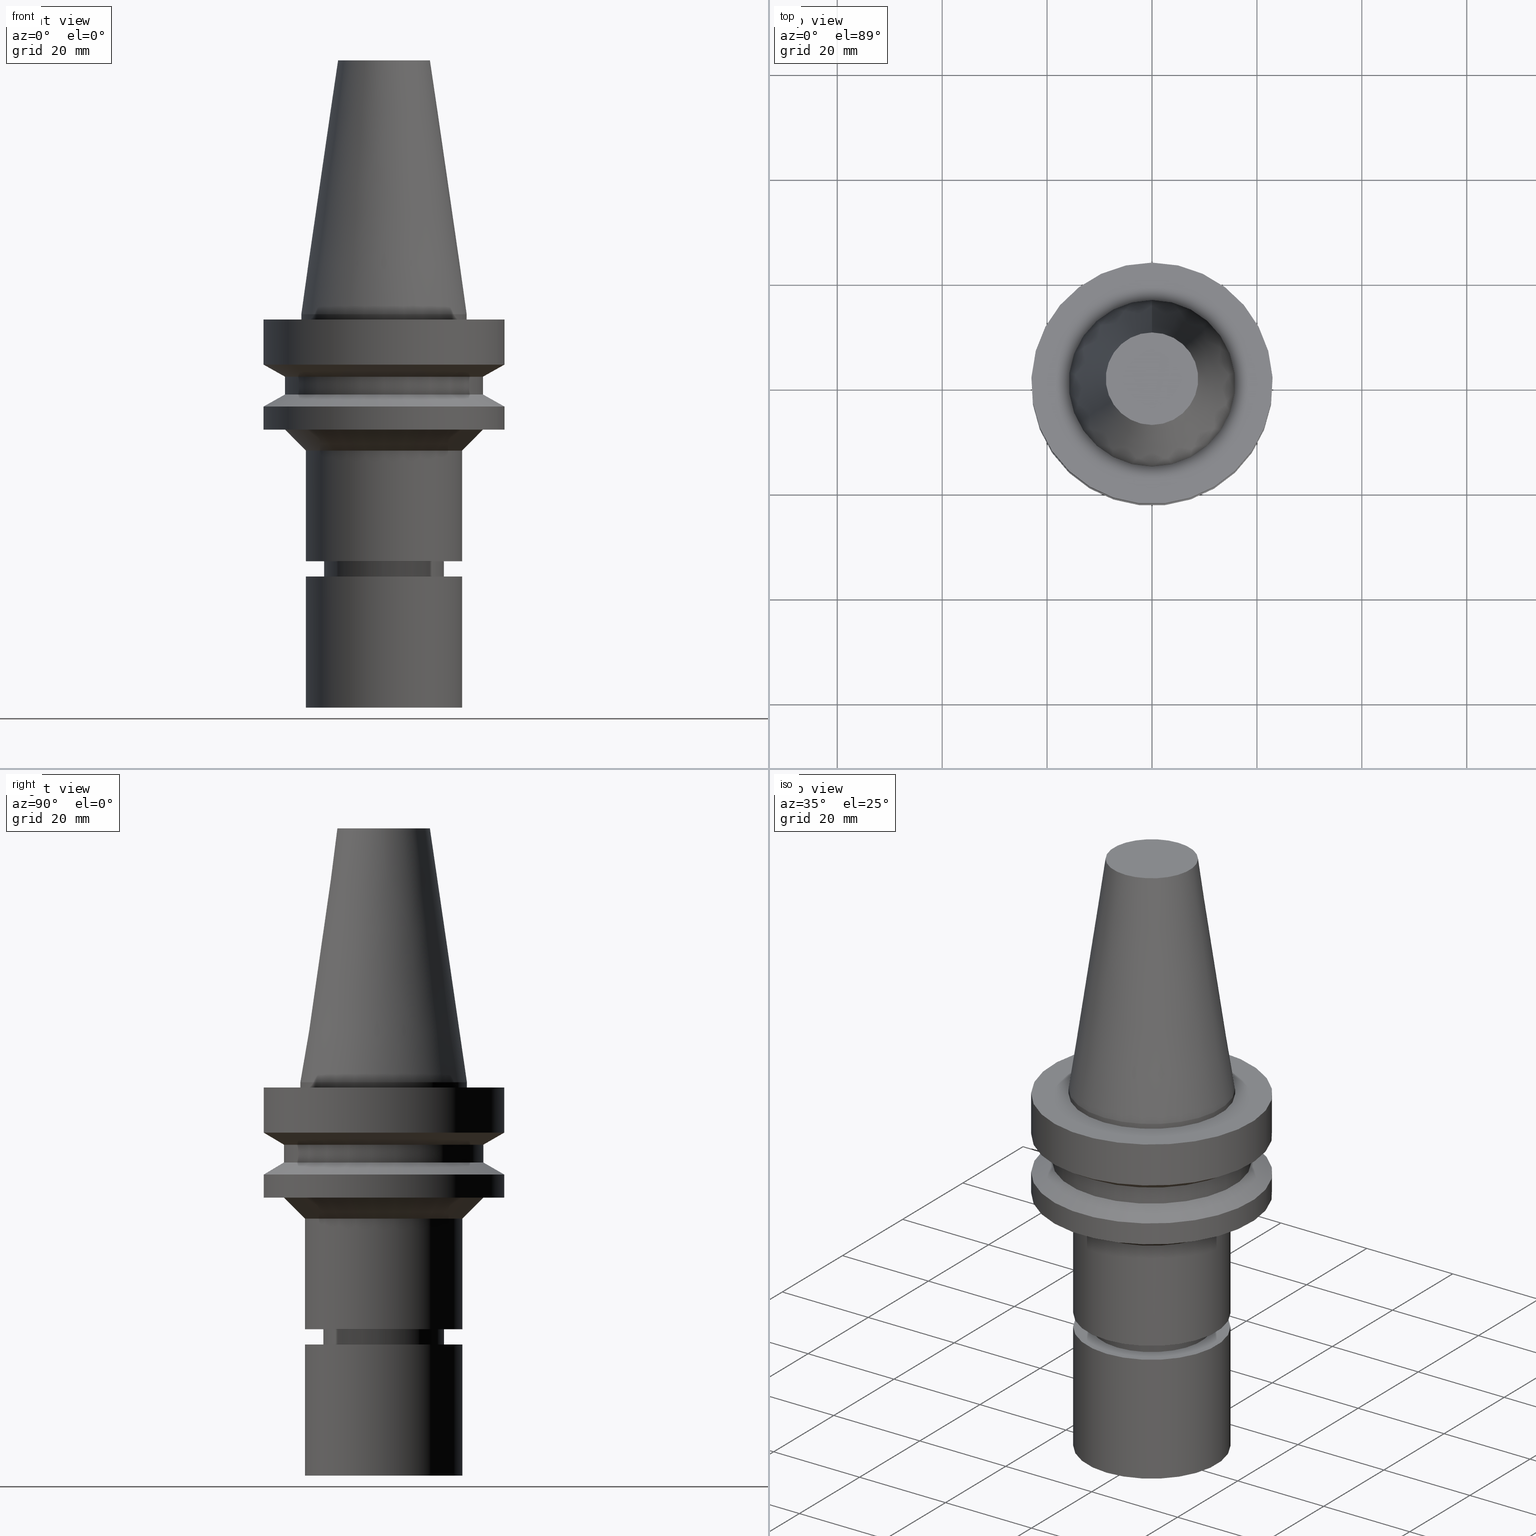
[diagram: canonical four-view strip — front | top / right | iso, engineering-drawing reading convention]
A machine part, canonical four-view strip (front | top / right | iso — engineering-drawing reading convention). The complete STEP part file that produces these views, byte-faithful:
ISO-10303-21;
HEADER;
FILE_DESCRIPTION((''),'1');
FILE_NAME('V:/90_\X2\53D65F9730C730FC30BF\X0\/00_\X2\6DE18DEF30C730FC30BF\X0\/ALL/BBT-BKUS\X2\FF76FF80FF9BFF78FF9E752852A05DE556F3\X0\201801/BBT30-MEGAER/BBT30-MEGAER16-75NL.stp','2018-02-02T07:08:50',(''),(''),'Spatial Interop R21 SP3','Kubotek KeyCreator 2011 V10.0.2 (22737)',' ');
FILE_SCHEMA(('automotive_design'));
ENDSEC;
DATA;
#1=MECHANICAL_DESIGN_GEOMETRIC_PRESENTATION_REPRESENTATION(' ',(#14,#15,#16,#17,#18,#19,#20,#21,#22,#23,#24,#25,#26,#27,#28,#29,#30,#31,#32,#33,#34,#35,#36,#37,#38,#39,#40,#41,#42,#43,#44,#45,#46,#47,#48,#49,#50,#51,#52,#53,#54,#55),#10);
#2=PRODUCT_DEFINITION_CONTEXT('',#56,'design');
#3=APPLICATION_PROTOCOL_DEFINITION('INTERNATIONAL STANDARD','automotive_design',1994,#56);
#4=PRODUCT_CATEGORY_RELATIONSHIP('NONE','NONE',#57,#58);
#5=SHAPE_DEFINITION_REPRESENTATION(#59,#60);
#6=PRODUCT_DEFINITION_CONTEXT('',#61,'design');
#7=APPLICATION_PROTOCOL_DEFINITION('INTERNATIONAL STANDARD','automotive_design',1994,#61);
#8=PRODUCT_CATEGORY_RELATIONSHIP('NONE','NONE',#62,#63);
#9=SHAPE_DEFINITION_REPRESENTATION(#64,#65);
#10= (GEOMETRIC_REPRESENTATION_CONTEXT(3)GLOBAL_UNCERTAINTY_ASSIGNED_CONTEXT((#68))GLOBAL_UNIT_ASSIGNED_CONTEXT((#70,#71,#72))REPRESENTATION_CONTEXT('NONE','WORKSPACE'));
#14=STYLED_ITEM('',(#74),#75);
#15=STYLED_ITEM('',(#76,#77),#78);
#16=STYLED_ITEM('',(#79),#80);
#17=STYLED_ITEM('',(#81),#82);
#18=STYLED_ITEM('',(#83,#84),#85);
#19=STYLED_ITEM('',(#86),#87);
#20=STYLED_ITEM('',(#88),#89);
#21=STYLED_ITEM('',(#90,#91),#92);
#22=STYLED_ITEM('',(#93,#94),#95);
#23=STYLED_ITEM('',(#96,#97),#98);
#24=STYLED_ITEM('',(#99),#100);
#25=STYLED_ITEM('',(#101),#102);
#26=STYLED_ITEM('',(#103,#104),#105);
#27=STYLED_ITEM('',(#106,#107),#108);
#28=STYLED_ITEM('',(#109),#110);
#29=STYLED_ITEM('',(#111,#112),#113);
#30=STYLED_ITEM('',(#114),#115);
#31=STYLED_ITEM('',(#116,#117),#118);
#32=STYLED_ITEM('',(#119,#120),#121);
#33=STYLED_ITEM('',(#122,#123),#124);
#34=STYLED_ITEM('',(#125,#126),#127);
#35=STYLED_ITEM('',(#128,#129),#130);
#36=STYLED_ITEM('',(#131),#132);
#37=STYLED_ITEM('',(#133),#134);
#38=STYLED_ITEM('',(#135),#136);
#39=STYLED_ITEM('',(#137),#138);
#40=STYLED_ITEM('',(#139,#140),#141);
#41=STYLED_ITEM('',(#142,#143),#144);
#42=STYLED_ITEM('',(#145,#146),#147);
#43=STYLED_ITEM('',(#148,#149),#150);
#44=STYLED_ITEM('',(#151,#152),#153);
#45=STYLED_ITEM('',(#154,#155),#156);
#46=STYLED_ITEM('',(#157,#158),#159);
#47=STYLED_ITEM('',(#160,#161),#162);
#48=STYLED_ITEM('',(#163),#164);
#49=STYLED_ITEM('',(#165),#166);
#50=STYLED_ITEM('',(#167,#168),#169);
#51=STYLED_ITEM('',(#170),#171);
#52=STYLED_ITEM('',(#172,#173),#174);
#53=STYLED_ITEM('',(#175),#176);
#54=STYLED_ITEM('',(#177),#178);
#55=STYLED_ITEM('',(#179),#180);
#56=APPLICATION_CONTEXT(' ');
#57=PRODUCT_CATEGORY('part','NONE');
#58=PRODUCT_RELATED_PRODUCT_CATEGORY('detail',' ',(#181));
#59=PRODUCT_DEFINITION_SHAPE('NONE','NONE',#182);
#60=ADVANCED_BREP_SHAPE_REPRESENTATION('Unnamed[1]',(#156,#183),#10);
#61=APPLICATION_CONTEXT(' ');
#62=PRODUCT_CATEGORY('part','NONE');
#63=PRODUCT_RELATED_PRODUCT_CATEGORY('detail',' ',(#184));
#64=PRODUCT_DEFINITION_SHAPE('NONE','NONE',#185);
#65=ADVANCED_BREP_SHAPE_REPRESENTATION('Unnamed[1]',(#124,#186),#10);
#68=UNCERTAINTY_MEASURE_WITH_UNIT(LENGTH_MEASURE(1.0E-006),#70,'','');
#70= (CONVERSION_BASED_UNIT('MILLIMETRE',#189)LENGTH_UNIT()NAMED_UNIT(#192));
#71= (NAMED_UNIT(#194)PLANE_ANGLE_UNIT()SI_UNIT($,.RADIAN.));
#72= (NAMED_UNIT(#194)SOLID_ANGLE_UNIT()SI_UNIT($,.STERADIAN.));
#74=PRESENTATION_STYLE_ASSIGNMENT((#200));
#75=EDGE_CURVE('Unnamed[1]',#201,#201,#202,.T.);
#76=PRESENTATION_STYLE_ASSIGNMENT((#203));
#77=PRESENTATION_STYLE_ASSIGNMENT((#204));
#78=ADVANCED_FACE('Unnamed[1]',(#205,#206),#207,.T.);
#79=PRESENTATION_STYLE_ASSIGNMENT((#208));
#80=EDGE_CURVE('Unnamed[1]',#209,#209,#210,.T.);
#81=PRESENTATION_STYLE_ASSIGNMENT((#211));
#82=EDGE_CURVE('Unnamed[1]',#212,#212,#213,.T.);
#83=PRESENTATION_STYLE_ASSIGNMENT((#214));
#84=PRESENTATION_STYLE_ASSIGNMENT((#215));
#85=ADVANCED_FACE('Unnamed[1]',(#216,#217),#218,.T.);
#86=PRESENTATION_STYLE_ASSIGNMENT((#219));
#87=EDGE_CURVE('Unnamed[1]',#220,#220,#221,.T.);
#88=PRESENTATION_STYLE_ASSIGNMENT((#222));
#89=EDGE_CURVE('Unnamed[1]',#223,#223,#224,.T.);
#90=PRESENTATION_STYLE_ASSIGNMENT((#225));
#91=PRESENTATION_STYLE_ASSIGNMENT((#226));
#92=ADVANCED_FACE('Unnamed[1]',(#227,#228),#229,.T.);
#93=PRESENTATION_STYLE_ASSIGNMENT((#230));
#94=PRESENTATION_STYLE_ASSIGNMENT((#231));
#95=ADVANCED_FACE('Unnamed[1]',(#232,#233),#234,.T.);
#96=PRESENTATION_STYLE_ASSIGNMENT((#235));
#97=PRESENTATION_STYLE_ASSIGNMENT((#236));
#98=ADVANCED_FACE('Unnamed[1]',(#237,#238),#239,.T.);
#99=PRESENTATION_STYLE_ASSIGNMENT((#240));
#100=EDGE_CURVE('Unnamed[1]',#241,#241,#242,.T.);
#101=PRESENTATION_STYLE_ASSIGNMENT((#243));
#102=EDGE_CURVE('Unnamed[1]',#244,#244,#245,.T.);
#103=PRESENTATION_STYLE_ASSIGNMENT((#246));
#104=PRESENTATION_STYLE_ASSIGNMENT((#247));
#105=ADVANCED_FACE('Unnamed[1]',(#248),#249,.T.);
#106=PRESENTATION_STYLE_ASSIGNMENT((#250));
#107=PRESENTATION_STYLE_ASSIGNMENT((#251));
#108=ADVANCED_FACE('Unnamed[1]',(#252,#253),#254,.T.);
#109=PRESENTATION_STYLE_ASSIGNMENT((#255));
#110=EDGE_CURVE('Unnamed[1]',#256,#256,#257,.T.);
#111=PRESENTATION_STYLE_ASSIGNMENT((#258));
#112=PRESENTATION_STYLE_ASSIGNMENT((#259));
#113=ADVANCED_FACE('Unnamed[1]',(#260,#261),#262,.T.);
#114=PRESENTATION_STYLE_ASSIGNMENT((#263));
#115=EDGE_CURVE('Unnamed[1]',#264,#264,#265,.T.);
#116=PRESENTATION_STYLE_ASSIGNMENT((#266));
#117=PRESENTATION_STYLE_ASSIGNMENT((#267));
#118=ADVANCED_FACE('Unnamed[1]',(#268,#269),#270,.T.);
#119=PRESENTATION_STYLE_ASSIGNMENT((#271));
#120=PRESENTATION_STYLE_ASSIGNMENT((#272));
#121=ADVANCED_FACE('Unnamed[1]',(#273,#274),#275,.T.);
#122=PRESENTATION_STYLE_ASSIGNMENT((#276));
#123=PRESENTATION_STYLE_ASSIGNMENT((#277));
#124=MANIFOLD_SOLID_BREP('Unnamed[1]',#278);
#125=PRESENTATION_STYLE_ASSIGNMENT((#279));
#126=PRESENTATION_STYLE_ASSIGNMENT((#280));
#127=ADVANCED_FACE('Unnamed[1]',(#281,#282),#283,.T.);
#128=PRESENTATION_STYLE_ASSIGNMENT((#284));
#129=PRESENTATION_STYLE_ASSIGNMENT((#285));
#130=ADVANCED_FACE('Unnamed[1]',(#286,#287),#288,.T.);
#131=PRESENTATION_STYLE_ASSIGNMENT((#289));
#132=EDGE_CURVE('Unnamed[1]',#290,#290,#291,.T.);
#133=PRESENTATION_STYLE_ASSIGNMENT((#292));
#134=EDGE_CURVE('Unnamed[1]',#293,#293,#294,.T.);
#135=PRESENTATION_STYLE_ASSIGNMENT((#295));
#136=EDGE_CURVE('Unnamed[1]',#296,#296,#297,.T.);
#137=PRESENTATION_STYLE_ASSIGNMENT((#298));
#138=EDGE_CURVE('Unnamed[1]',#299,#299,#300,.T.);
#139=PRESENTATION_STYLE_ASSIGNMENT((#301));
#140=PRESENTATION_STYLE_ASSIGNMENT((#302));
#141=ADVANCED_FACE('Unnamed[1]',(#303,#304),#305,.T.);
#142=PRESENTATION_STYLE_ASSIGNMENT((#306));
#143=PRESENTATION_STYLE_ASSIGNMENT((#307));
#144=ADVANCED_FACE('Unnamed[1]',(#308,#309),#310,.T.);
#145=PRESENTATION_STYLE_ASSIGNMENT((#311));
#146=PRESENTATION_STYLE_ASSIGNMENT((#312));
#147=ADVANCED_FACE('Unnamed[1]',(#313),#314,.T.);
#148=PRESENTATION_STYLE_ASSIGNMENT((#315));
#149=PRESENTATION_STYLE_ASSIGNMENT((#316));
#150=ADVANCED_FACE('Unnamed[1]',(#317),#318,.T.);
#151=PRESENTATION_STYLE_ASSIGNMENT((#319));
#152=PRESENTATION_STYLE_ASSIGNMENT((#320));
#153=ADVANCED_FACE('Unnamed[1]',(#321,#322),#323,.T.);
#154=PRESENTATION_STYLE_ASSIGNMENT((#324));
#155=PRESENTATION_STYLE_ASSIGNMENT((#325));
#156=MANIFOLD_SOLID_BREP('Unnamed[1]',#326);
#157=PRESENTATION_STYLE_ASSIGNMENT((#327));
#158=PRESENTATION_STYLE_ASSIGNMENT((#328));
#159=ADVANCED_FACE('Unnamed[1]',(#329,#330),#331,.T.);
#160=PRESENTATION_STYLE_ASSIGNMENT((#332));
#161=PRESENTATION_STYLE_ASSIGNMENT((#333));
#162=ADVANCED_FACE('Unnamed[1]',(#334,#335),#336,.T.);
#163=PRESENTATION_STYLE_ASSIGNMENT((#337));
#164=EDGE_CURVE('Unnamed[1]',#338,#338,#339,.T.);
#165=PRESENTATION_STYLE_ASSIGNMENT((#340));
#166=EDGE_CURVE('Unnamed[1]',#341,#341,#342,.T.);
#167=PRESENTATION_STYLE_ASSIGNMENT((#343));
#168=PRESENTATION_STYLE_ASSIGNMENT((#344));
#169=ADVANCED_FACE('Unnamed[1]',(#345),#346,.T.);
#170=PRESENTATION_STYLE_ASSIGNMENT((#347));
#171=EDGE_CURVE('Unnamed[1]',#348,#348,#349,.T.);
#172=PRESENTATION_STYLE_ASSIGNMENT((#350));
#173=PRESENTATION_STYLE_ASSIGNMENT((#351));
#174=ADVANCED_FACE('Unnamed[1]',(#352,#353),#354,.T.);
#175=PRESENTATION_STYLE_ASSIGNMENT((#355));
#176=EDGE_CURVE('Unnamed[1]',#356,#356,#357,.T.);
#177=PRESENTATION_STYLE_ASSIGNMENT((#358));
#178=EDGE_CURVE('Unnamed[1]',#359,#359,#360,.T.);
#179=PRESENTATION_STYLE_ASSIGNMENT((#361));
#180=EDGE_CURVE('Unnamed[1]',#362,#362,#363,.T.);
#181=PRODUCT('Unnamed[1]','Unnamed[1]','PART-Unnamed[1]-DESC',(#364));
#182=PRODUCT_DEFINITION('NONE','NONE',#365,#2);
#183=AXIS2_PLACEMENT_3D('',#366,#367,#368);
#184=PRODUCT('Unnamed[1]','Unnamed[1]','PART-Unnamed[1]-DESC',(#369));
#185=PRODUCT_DEFINITION('NONE','NONE',#370,#6);
#186=AXIS2_PLACEMENT_3D('',#371,#372,#373);
#189=LENGTH_MEASURE_WITH_UNIT(LENGTH_MEASURE(1.0),#374);
#192=DIMENSIONAL_EXPONENTS(1.0,0.0,0.0,0.0,0.0,0.0,0.0);
#194=DIMENSIONAL_EXPONENTS(0.0,0.0,0.0,0.0,0.0,0.0,0.0);
#200=CURVE_STYLE('',#375,POSITIVE_LENGTH_MEASURE(1000.0),#376);
#201=VERTEX_POINT('',#377);
#202=CIRCLE('',#378,23.0);
#203=SURFACE_STYLE_USAGE(.BOTH.,#379);
#204=CURVE_STYLE('',#380,POSITIVE_LENGTH_MEASURE(1000.0),#381);
#205=FACE_BOUND('',#382,.T.);
#206=FACE_BOUND('',#383,.T.);
#207=CYLINDRICAL_SURFACE('',#384,11.4999999999964);
#208=CURVE_STYLE('',#385,POSITIVE_LENGTH_MEASURE(1000.0),#386);
#209=VERTEX_POINT('',#387);
#210=CIRCLE('',#388,19.0000000000004);
#211=CURVE_STYLE('',#389,POSITIVE_LENGTH_MEASURE(1000.0),#390);
#212=VERTEX_POINT('',#391);
#213=CIRCLE('',#392,11.4999999999907);
#214=SURFACE_STYLE_USAGE(.BOTH.,#393);
#215=CURVE_STYLE('',#394,POSITIVE_LENGTH_MEASURE(1000.0),#395);
#216=FACE_BOUND('',#396,.T.);
#217=FACE_BOUND('',#397,.T.);
#218=CONICAL_SURFACE('',#398,17.0000000000004,0.785398163397453);
#219=CURVE_STYLE('',#399,POSITIVE_LENGTH_MEASURE(1000.0),#400);
#220=VERTEX_POINT('',#401);
#221=CIRCLE('',#402,10.9999999999999);
#222=CURVE_STYLE('',#403,POSITIVE_LENGTH_MEASURE(1000.0),#404);
#223=VERTEX_POINT('',#405);
#224=CIRCLE('',#406,15.0000000000002);
#225=SURFACE_STYLE_USAGE(.BOTH.,#407);
#226=CURVE_STYLE('',#408,POSITIVE_LENGTH_MEASURE(1000.0),#409);
#227=FACE_BOUND('',#410,.T.);
#228=FACE_BOUND('',#411,.T.);
#229=CONICAL_SURFACE('',#412,10.4499999999999,0.52359877559823);
#230=SURFACE_STYLE_USAGE(.BOTH.,#413);
#231=CURVE_STYLE('',#414,POSITIVE_LENGTH_MEASURE(1000.0),#415);
#232=FACE_OUTER_BOUND('',#416,.T.);
#233=FACE_BOUND('',#417,.T.);
#234=PLANE('',#418);
#235=SURFACE_STYLE_USAGE(.BOTH.,#419);
#236=CURVE_STYLE('',#420,POSITIVE_LENGTH_MEASURE(1000.0),#421);
#237=FACE_BOUND('',#422,.T.);
#238=FACE_BOUND('',#423,.T.);
#239=CYLINDRICAL_SURFACE('',#424,15.875);
#240=CURVE_STYLE('',#425,POSITIVE_LENGTH_MEASURE(1000.0),#426);
#241=VERTEX_POINT('',#427);
#242=CIRCLE('',#428,23.0);
#243=CURVE_STYLE('',#429,POSITIVE_LENGTH_MEASURE(1000.0),#430);
#244=VERTEX_POINT('',#431);
#245=CIRCLE('',#432,15.0);
#246=SURFACE_STYLE_USAGE(.BOTH.,#433);
#247=CURVE_STYLE('',#434,POSITIVE_LENGTH_MEASURE(1000.0),#435);
#248=FACE_OUTER_BOUND('',#436,.T.);
#249=PLANE('',#437);
#250=SURFACE_STYLE_USAGE(.BOTH.,#438);
#251=CURVE_STYLE('',#439,POSITIVE_LENGTH_MEASURE(1000.0),#440);
#252=FACE_BOUND('',#441,.T.);
#253=FACE_BOUND('',#442,.T.);
#254=CYLINDRICAL_SURFACE('',#443,15.0000000000003);
#255=CURVE_STYLE('',#444,POSITIVE_LENGTH_MEASURE(1000.0),#445);
#256=VERTEX_POINT('',#446);
#257=CIRCLE('',#447,19.0);
#258=SURFACE_STYLE_USAGE(.BOTH.,#448);
#259=CURVE_STYLE('',#449,POSITIVE_LENGTH_MEASURE(1000.0),#450);
#260=FACE_BOUND('',#451,.T.);
#261=FACE_BOUND('',#452,.T.);
#262=CYLINDRICAL_SURFACE('',#453,11.0000000000001);
#263=CURVE_STYLE('',#454,POSITIVE_LENGTH_MEASURE(1000.0),#455);
#264=VERTEX_POINT('',#456);
#265=CIRCLE('',#457,8.81650000198669);
#266=SURFACE_STYLE_USAGE(.BOTH.,#458);
#267=CURVE_STYLE('',#459,POSITIVE_LENGTH_MEASURE(1000.0),#460);
#268=FACE_BOUND('',#461,.T.);
#269=FACE_BOUND('',#462,.T.);
#270=CONICAL_SURFACE('',#463,11.250000000001,1.04719755118907);
#271=SURFACE_STYLE_USAGE(.BOTH.,#464);
#272=CURVE_STYLE('',#465,POSITIVE_LENGTH_MEASURE(1000.0),#466);
#273=FACE_BOUND('',#467,.T.);
#274=FACE_OUTER_BOUND('',#468,.T.);
#275=PLANE('',#469);
#276=SURFACE_STYLE_USAGE(.BOTH.,#470);
#277=CURVE_STYLE('',#471,POSITIVE_LENGTH_MEASURE(1000.0),#472);
#278=CLOSED_SHELL('',(#147,#169,#127));
#279=SURFACE_STYLE_USAGE(.BOTH.,#473);
#280=CURVE_STYLE('',#474,POSITIVE_LENGTH_MEASURE(1000.0),#475);
#281=FACE_BOUND('',#476,.T.);
#282=FACE_BOUND('',#477,.T.);
#283=CYLINDRICAL_SURFACE('',#478,15.0);
#284=SURFACE_STYLE_USAGE(.BOTH.,#479);
#285=CURVE_STYLE('',#480,POSITIVE_LENGTH_MEASURE(1000.0),#481);
#286=FACE_BOUND('',#482,.T.);
#287=FACE_BOUND('',#483,.T.);
#288=CYLINDRICAL_SURFACE('',#484,19.0);
#289=CURVE_STYLE('',#485,POSITIVE_LENGTH_MEASURE(1000.0),#486);
#290=VERTEX_POINT('',#487);
#291=CIRCLE('',#488,15.875);
#292=CURVE_STYLE('',#489,POSITIVE_LENGTH_MEASURE(1000.0),#490);
#293=VERTEX_POINT('',#491);
#294=CIRCLE('',#492,11.0000000000003);
#295=CURVE_STYLE('',#493,POSITIVE_LENGTH_MEASURE(1000.0),#494);
#296=VERTEX_POINT('',#495);
#297=CIRCLE('',#496,19.0);
#298=CURVE_STYLE('',#497,POSITIVE_LENGTH_MEASURE(1000.0),#498);
#299=VERTEX_POINT('',#499);
#300=CIRCLE('',#500,15.875);
#301=SURFACE_STYLE_USAGE(.BOTH.,#501);
#302=CURVE_STYLE('',#502,POSITIVE_LENGTH_MEASURE(1000.0),#503);
#303=FACE_BOUND('',#504,.T.);
#304=FACE_BOUND('',#505,.T.);
#305=CYLINDRICAL_SURFACE('',#506,23.0);
#306=SURFACE_STYLE_USAGE(.BOTH.,#507);
#307=CURVE_STYLE('',#508,POSITIVE_LENGTH_MEASURE(1000.0),#509);
#308=FACE_BOUND('',#510,.T.);
#309=FACE_BOUND('',#511,.T.);
#310=CONICAL_SURFACE('',#512,12.3457500009933,0.144815870013618);
#311=SURFACE_STYLE_USAGE(.BOTH.,#513);
#312=CURVE_STYLE('',#514,POSITIVE_LENGTH_MEASURE(1000.0),#515);
#313=FACE_OUTER_BOUND('',#516,.T.);
#314=PLANE('',#517);
#315=SURFACE_STYLE_USAGE(.BOTH.,#518);
#316=CURVE_STYLE('',#519,POSITIVE_LENGTH_MEASURE(1000.0),#520);
#317=FACE_OUTER_BOUND('',#521,.T.);
#318=PLANE('',#522);
#319=SURFACE_STYLE_USAGE(.BOTH.,#523);
#320=CURVE_STYLE('',#524,POSITIVE_LENGTH_MEASURE(1000.0),#525);
#321=FACE_BOUND('',#526,.T.);
#322=FACE_BOUND('',#527,.T.);
#323=CONICAL_SURFACE('',#528,21.0,1.04719755058882);
#324=SURFACE_STYLE_USAGE(.BOTH.,#529);
#325=CURVE_STYLE('',#530,POSITIVE_LENGTH_MEASURE(1000.0),#531);
#326=CLOSED_SHELL('',(#105,#144,#98,#95,#159,#174,#130,#153,#141,#162,#85,#108,#121,#78,#118,#113,#92,#150));
#327=SURFACE_STYLE_USAGE(.BOTH.,#532);
#328=CURVE_STYLE('',#533,POSITIVE_LENGTH_MEASURE(1000.0),#534);
#329=FACE_BOUND('',#535,.T.);
#330=FACE_BOUND('',#536,.T.);
#331=CYLINDRICAL_SURFACE('',#537,23.0);
#332=SURFACE_STYLE_USAGE(.BOTH.,#538);
#333=CURVE_STYLE('',#539,POSITIVE_LENGTH_MEASURE(1000.0),#540);
#334=FACE_BOUND('',#541,.T.);
#335=FACE_OUTER_BOUND('',#542,.T.);
#336=PLANE('',#543);
#337=CURVE_STYLE('',#544,POSITIVE_LENGTH_MEASURE(1000.0),#545);
#338=VERTEX_POINT('',#546);
#339=CIRCLE('',#547,23.0);
#340=CURVE_STYLE('',#548,POSITIVE_LENGTH_MEASURE(1000.0),#549);
#341=VERTEX_POINT('',#550);
#342=CIRCLE('',#551,9.89999999999962);
#343=SURFACE_STYLE_USAGE(.BOTH.,#552);
#344=CURVE_STYLE('',#553,POSITIVE_LENGTH_MEASURE(1000.0),#554);
#345=FACE_OUTER_BOUND('',#555,.T.);
#346=PLANE('',#556);
#347=CURVE_STYLE('',#557,POSITIVE_LENGTH_MEASURE(1000.0),#558);
#348=VERTEX_POINT('',#559);
#349=CIRCLE('',#560,15.0000000000004);
#350=SURFACE_STYLE_USAGE(.BOTH.,#561);
#351=CURVE_STYLE('',#562,POSITIVE_LENGTH_MEASURE(1000.0),#563);
#352=FACE_BOUND('',#564,.T.);
#353=FACE_BOUND('',#565,.T.);
#354=CONICAL_SURFACE('',#566,21.0,1.04719755058881);
#355=CURVE_STYLE('',#567,POSITIVE_LENGTH_MEASURE(1000.0),#568);
#356=VERTEX_POINT('',#569);
#357=CIRCLE('',#570,15.0000000000001);
#358=CURVE_STYLE('',#571,POSITIVE_LENGTH_MEASURE(1000.0),#572);
#359=VERTEX_POINT('',#573);
#360=CIRCLE('',#574,23.0);
#361=CURVE_STYLE('',#575,POSITIVE_LENGTH_MEASURE(1000.0),#576);
#362=VERTEX_POINT('',#577);
#363=CIRCLE('',#578,11.5000000000021);
#364=PRODUCT_CONTEXT('',#56,'mechanical');
#365=PRODUCT_DEFINITION_FORMATION_WITH_SPECIFIED_SOURCE(' ','NONE',#181,.NOT_KNOWN.);
#366=CARTESIAN_POINT('',(0.0,0.0,0.0));
#367=DIRECTION('',(0.0,0.0,1.0));
#368=DIRECTION('',(1.0,0.0,0.0));
#369=PRODUCT_CONTEXT('',#61,'mechanical');
#370=PRODUCT_DEFINITION_FORMATION_WITH_SPECIFIED_SOURCE(' ','NONE',#184,.NOT_KNOWN.);
#371=CARTESIAN_POINT('',(0.0,0.0,0.0));
#372=DIRECTION('',(0.0,0.0,1.0));
#373=DIRECTION('',(1.0,0.0,0.0));
#374= (NAMED_UNIT(#192)LENGTH_UNIT()SI_UNIT(.MILLI.,.METRE.));
#375=DRAUGHTING_PRE_DEFINED_CURVE_FONT('continuous');
#376=COLOUR_RGB('',0.0,1.0,0.0);
#377=CARTESIAN_POINT('',(6.12323399573674E-017,23.0,-0.999999999999997));
#378=AXIS2_PLACEMENT_3D('',#580,#581,#582);
#379=SURFACE_SIDE_STYLE('',(#583));
#380=DRAUGHTING_PRE_DEFINED_CURVE_FONT('continuous');
#381=COLOUR_RGB('',0.0,1.0,0.0);
#382=EDGE_LOOP('',(#584));
#383=EDGE_LOOP('',(#585));
#384=AXIS2_PLACEMENT_3D('',#586,#587,#588);
#385=DRAUGHTING_PRE_DEFINED_CURVE_FONT('continuous');
#386=COLOUR_RGB('',0.0,1.0,0.0);
#387=CARTESIAN_POINT('',(1.34711147906209E-015,19.0000000000004,-22.0));
#388=AXIS2_PLACEMENT_3D('',#589,#590,#591);
#389=DRAUGHTING_PRE_DEFINED_CURVE_FONT('continuous');
#390=COLOUR_RGB('',0.0,1.0,0.0);
#391=CARTESIAN_POINT('',(2.88404321199202E-015,11.4999999999907,-47.1000000000001));
#392=AXIS2_PLACEMENT_3D('',#592,#593,#594);
#393=SURFACE_SIDE_STYLE('',(#595));
#394=DRAUGHTING_PRE_DEFINED_CURVE_FONT('continuous');
#395=COLOUR_RGB('',0.0,1.0,0.0);
#396=EDGE_LOOP('',(#596));
#397=EDGE_LOOP('',(#597));
#398=AXIS2_PLACEMENT_3D('',#598,#599,#600);
#399=DRAUGHTING_PRE_DEFINED_CURVE_FONT('continuous');
#400=COLOUR_RGB('',0.0,1.0,0.0);
#401=CARTESIAN_POINT('',(3.25756048573186E-015,10.9999999999999,-53.1999999999984));
#402=AXIS2_PLACEMENT_3D('',#601,#602,#603);
#403=DRAUGHTING_PRE_DEFINED_CURVE_FONT('continuous');
#404=COLOUR_RGB('',0.0,1.0,0.0);
#405=CARTESIAN_POINT('',(2.88404321199198E-015,15.0000000000002,-47.0999999999994));
#406=AXIS2_PLACEMENT_3D('',#604,#605,#606);
#407=SURFACE_SIDE_STYLE('',(#607));
#408=DRAUGHTING_PRE_DEFINED_CURVE_FONT('continuous');
#409=COLOUR_RGB('',0.0,1.0,0.0);
#410=EDGE_LOOP('',(#608));
#411=EDGE_LOOP('',(#609));
#412=AXIS2_PLACEMENT_3D('',#610,#611,#612);
#413=SURFACE_SIDE_STYLE('',(#613));
#414=DRAUGHTING_PRE_DEFINED_CURVE_FONT('continuous');
#415=COLOUR_RGB('',0.0,1.0,0.0);
#416=EDGE_LOOP('',(#614));
#417=EDGE_LOOP('',(#615));
#418=AXIS2_PLACEMENT_3D('',#616,#617,#618);
#419=SURFACE_SIDE_STYLE('',(#619));
#420=DRAUGHTING_PRE_DEFINED_CURVE_FONT('continuous');
#421=COLOUR_RGB('',0.0,1.0,0.0);
#422=EDGE_LOOP('',(#620));
#423=EDGE_LOOP('',(#621));
#424=AXIS2_PLACEMENT_3D('',#622,#623,#624);
#425=DRAUGHTING_PRE_DEFINED_CURVE_FONT('continuous');
#426=COLOUR_RGB('',0.0,1.0,0.0);
#427=CARTESIAN_POINT('',(1.07768918324967E-015,23.0,-17.6));
#428=AXIS2_PLACEMENT_3D('',#625,#626,#627);
#429=DRAUGHTING_PRE_DEFINED_CURVE_FONT('continuous');
#430=COLOUR_RGB('',0.0,1.0,0.0);
#431=CARTESIAN_POINT('',(4.59242549680258E-015,15.0,-75.0));
#432=AXIS2_PLACEMENT_3D('',#628,#629,#630);
#433=SURFACE_SIDE_STYLE('',(#631));
#434=DRAUGHTING_PRE_DEFINED_CURVE_FONT('continuous');
#435=COLOUR_RGB('',0.0,1.0,0.0);
#436=EDGE_LOOP('',(#632));
#437=AXIS2_PLACEMENT_3D('',#633,#634,#635);
#438=SURFACE_SIDE_STYLE('',(#636));
#439=DRAUGHTING_PRE_DEFINED_CURVE_FONT('continuous');
#440=COLOUR_RGB('',0.0,1.0,0.0);
#441=EDGE_LOOP('',(#637));
#442=EDGE_LOOP('',(#638));
#443=AXIS2_PLACEMENT_3D('',#639,#640,#641);
#444=DRAUGHTING_PRE_DEFINED_CURVE_FONT('continuous');
#445=COLOUR_RGB('',0.0,1.0,0.0);
#446=CARTESIAN_POINT('',(7.29240495619202E-016,19.0,-11.90940108));
#447=AXIS2_PLACEMENT_3D('',#642,#643,#644);
#448=SURFACE_SIDE_STYLE('',(#645));
#449=DRAUGHTING_PRE_DEFINED_CURVE_FONT('continuous');
#450=COLOUR_RGB('',0.0,1.0,0.0);
#451=EDGE_LOOP('',(#646));
#452=EDGE_LOOP('',(#647));
#453=AXIS2_PLACEMENT_3D('',#648,#649,#650);
#454=DRAUGHTING_PRE_DEFINED_CURVE_FONT('continuous');
#455=COLOUR_RGB('',0.0,1.0,0.0);
#456=CARTESIAN_POINT('',(-2.96364525393659E-015,8.81650000198669,48.4));
#457=AXIS2_PLACEMENT_3D('',#651,#652,#653);
#458=SURFACE_SIDE_STYLE('',(#654));
#459=DRAUGHTING_PRE_DEFINED_CURVE_FONT('continuous');
#460=COLOUR_RGB('',0.0,1.0,0.0);
#461=EDGE_LOOP('',(#655));
#462=EDGE_LOOP('',(#656));
#463=AXIS2_PLACEMENT_3D('',#657,#658,#659);
#464=SURFACE_SIDE_STYLE('',(#660));
#465=DRAUGHTING_PRE_DEFINED_CURVE_FONT('continuous');
#466=COLOUR_RGB('',0.0,1.0,0.0);
#467=EDGE_LOOP('',(#661));
#468=EDGE_LOOP('',(#662));
#469=AXIS2_PLACEMENT_3D('',#663,#664,#665);
#470=SURFACE_SIDE_STYLE('',(#666));
#471=DRAUGHTING_PRE_DEFINED_CURVE_FONT('continuous');
#472=COLOUR_RGB('',0.0,1.0,0.0);
#473=SURFACE_SIDE_STYLE('',(#667));
#474=DRAUGHTING_PRE_DEFINED_CURVE_FONT('continuous');
#475=COLOUR_RGB('',0.0,1.0,0.0);
#476=EDGE_LOOP('',(#668));
#477=EDGE_LOOP('',(#669));
#478=AXIS2_PLACEMENT_3D('',#670,#671,#672);
#479=SURFACE_SIDE_STYLE('',(#673));
#480=DRAUGHTING_PRE_DEFINED_CURVE_FONT('continuous');
#481=COLOUR_RGB('',0.0,1.0,0.0);
#482=EDGE_LOOP('',(#674));
#483=EDGE_LOOP('',(#675));
#484=AXIS2_PLACEMENT_3D('',#676,#677,#678);
#485=DRAUGHTING_PRE_DEFINED_CURVE_FONT('continuous');
#486=COLOUR_RGB('',0.0,1.0,0.0);
#487=CARTESIAN_POINT('',(6.12323399573675E-017,15.875,-0.999999999999998));
#488=AXIS2_PLACEMENT_3D('',#679,#680,#681);
#489=DRAUGHTING_PRE_DEFINED_CURVE_FONT('continuous');
#490=COLOUR_RGB('',0.0,1.0,0.0);
#491=CARTESIAN_POINT('',(3.93691762891786E-015,11.0000000000003,-64.2947441116719));
#492=AXIS2_PLACEMENT_3D('',#682,#683,#684);
#493=DRAUGHTING_PRE_DEFINED_CURVE_FONT('continuous');
#494=COLOUR_RGB('',0.0,1.0,0.0);
#495=CARTESIAN_POINT('',(9.36279151221199E-016,19.0,-15.29059892));
#496=AXIS2_PLACEMENT_3D('',#685,#686,#687);
#497=DRAUGHTING_PRE_DEFINED_CURVE_FONT('continuous');
#498=COLOUR_RGB('',0.0,1.0,0.0);
#499=CARTESIAN_POINT('',(-1.95674482349743E-031,15.875,1.94412679364642E-015));
#500=AXIS2_PLACEMENT_3D('',#688,#689,#690);
#501=SURFACE_SIDE_STYLE('',(#691));
#502=DRAUGHTING_PRE_DEFINED_CURVE_FONT('continuous');
#503=COLOUR_RGB('',0.0,1.0,0.0);
#504=EDGE_LOOP('',(#692));
#505=EDGE_LOOP('',(#693));
#506=AXIS2_PLACEMENT_3D('',#694,#695,#696);
#507=SURFACE_SIDE_STYLE('',(#697));
#508=DRAUGHTING_PRE_DEFINED_CURVE_FONT('continuous');
#509=COLOUR_RGB('',0.0,1.0,0.0);
#510=EDGE_LOOP('',(#698));
#511=EDGE_LOOP('',(#699));
#512=AXIS2_PLACEMENT_3D('',#700,#701,#702);
#513=SURFACE_SIDE_STYLE('',(#703));
#514=DRAUGHTING_PRE_DEFINED_CURVE_FONT('continuous');
#515=COLOUR_RGB('',0.0,1.0,0.0);
#516=EDGE_LOOP('',(#704));
#517=AXIS2_PLACEMENT_3D('',#705,#706,#707);
#518=SURFACE_SIDE_STYLE('',(#708));
#519=DRAUGHTING_PRE_DEFINED_CURVE_FONT('continuous');
#520=COLOUR_RGB('',0.0,1.0,0.0);
#521=EDGE_LOOP('',(#709));
#522=AXIS2_PLACEMENT_3D('',#710,#711,#712);
#523=SURFACE_SIDE_STYLE('',(#713));
#524=DRAUGHTING_PRE_DEFINED_CURVE_FONT('continuous');
#525=COLOUR_RGB('',0.0,1.0,0.0);
#526=EDGE_LOOP('',(#714));
#527=EDGE_LOOP('',(#715));
#528=AXIS2_PLACEMENT_3D('',#716,#717,#718);
#529=SURFACE_SIDE_STYLE('',(#719));
#530=DRAUGHTING_PRE_DEFINED_CURVE_FONT('continuous');
#531=COLOUR_RGB('',0.0,1.0,0.0);
#532=SURFACE_SIDE_STYLE('',(#720));
#533=DRAUGHTING_PRE_DEFINED_CURVE_FONT('continuous');
#534=COLOUR_RGB('',0.0,1.0,0.0);
#535=EDGE_LOOP('',(#721));
#536=EDGE_LOOP('',(#722));
#537=AXIS2_PLACEMENT_3D('',#723,#724,#725);
#538=SURFACE_SIDE_STYLE('',(#726));
#539=DRAUGHTING_PRE_DEFINED_CURVE_FONT('continuous');
#540=COLOUR_RGB('',0.0,1.0,0.0);
#541=EDGE_LOOP('',(#727));
#542=EDGE_LOOP('',(#728));
#543=AXIS2_PLACEMENT_3D('',#729,#730,#731);
#544=DRAUGHTING_PRE_DEFINED_CURVE_FONT('continuous');
#545=COLOUR_RGB('',0.0,1.0,0.0);
#546=CARTESIAN_POINT('',(5.87830463590729E-016,23.0,-9.59999999999999));
#547=AXIS2_PLACEMENT_3D('',#732,#733,#734);
#548=DRAUGHTING_PRE_DEFINED_CURVE_FONT('continuous');
#549=COLOUR_RGB('',0.0,1.0,0.0);
#550=CARTESIAN_POINT('',(4.05358090517768E-015,9.89999999999963,-66.1999999999991));
#551=AXIS2_PLACEMENT_3D('',#735,#736,#737);
#552=SURFACE_SIDE_STYLE('',(#738));
#553=DRAUGHTING_PRE_DEFINED_CURVE_FONT('continuous');
#554=COLOUR_RGB('',0.0,1.0,0.0);
#555=EDGE_LOOP('',(#739));
#556=AXIS2_PLACEMENT_3D('',#740,#741,#742);
#557=DRAUGHTING_PRE_DEFINED_CURVE_FONT('continuous');
#558=COLOUR_RGB('',0.0,1.0,0.0);
#559=CARTESIAN_POINT('',(1.59204083889156E-015,15.0000000000004,-26.0));
#560=AXIS2_PLACEMENT_3D('',#743,#744,#745);
#561=SURFACE_SIDE_STYLE('',(#746));
#562=DRAUGHTING_PRE_DEFINED_CURVE_FONT('continuous');
#563=COLOUR_RGB('',0.0,1.0,0.0);
#564=EDGE_LOOP('',(#747));
#565=EDGE_LOOP('',(#748));
#566=AXIS2_PLACEMENT_3D('',#749,#750,#751);
#567=DRAUGHTING_PRE_DEFINED_CURVE_FONT('continuous');
#568=COLOUR_RGB('',0.0,1.0,0.0);
#569=CARTESIAN_POINT('',(3.06161699786838E-015,15.0000000000001,-50.0));
#570=AXIS2_PLACEMENT_3D('',#752,#753,#754);
#571=DRAUGHTING_PRE_DEFINED_CURVE_FONT('continuous');
#572=COLOUR_RGB('',0.0,1.0,0.0);
#573=CARTESIAN_POINT('',(1.34711147906209E-015,23.0,-22.0));
#574=AXIS2_PLACEMENT_3D('',#755,#756,#757);
#575=DRAUGHTING_PRE_DEFINED_CURVE_FONT('continuous');
#576=COLOUR_RGB('',0.0,1.0,0.0);
#577=CARTESIAN_POINT('',(3.23988423175273E-015,11.5000000000021,-52.9113248653974));
#578=AXIS2_PLACEMENT_3D('',#758,#759,#760);
#580=CARTESIAN_POINT('',(6.12323399573677E-017,1.22464679914735E-016,-1.0));
#581=DIRECTION('',(6.12323399573677E-017,1.22464679914735E-016,-1.0));
#582=DIRECTION('',(-1.23259516440783E-032,1.0,1.22464679914735E-016));
#583=SURFACE_STYLE_FILL_AREA(#761);
#584=ORIENTED_EDGE('',*,*,#180,.F.);
#585=ORIENTED_EDGE('',*,*,#82,.T.);
#586=CARTESIAN_POINT('',(3.06196372187238E-015,6.12392744374475E-015,-50.0056624326987));
#587=DIRECTION('',(6.12323399573676E-017,1.22464679914735E-016,-1.0));
#588=DIRECTION('',(-1.23259516440783E-032,1.0,1.22464679914735E-016));
#589=CARTESIAN_POINT('',(1.34711147906209E-015,2.69422295812418E-015,-22.0));
#590=DIRECTION('',(6.12323399573677E-017,1.22464679914735E-016,-1.0));
#591=DIRECTION('',(-1.23259516440783E-032,1.0,1.22464679914735E-016));
#592=CARTESIAN_POINT('',(2.88404321199202E-015,5.76808642398404E-015,-47.1000000000001));
#593=DIRECTION('',(6.12323399573677E-017,1.22464679914735E-016,-1.0));
#594=DIRECTION('',(-1.23259516440783E-032,1.0,1.22464679914735E-016));
#595=SURFACE_STYLE_FILL_AREA(#762);
#596=ORIENTED_EDGE('',*,*,#171,.F.);
#597=ORIENTED_EDGE('',*,*,#80,.T.);
#598=CARTESIAN_POINT('',(1.46957615897682E-015,2.93915231795364E-015,-24.0));
#599=DIRECTION('',(-6.12323399573677E-017,-1.22464679914735E-016,1.0));
#600=DIRECTION('',(-1.23259516440783E-032,1.0,1.22464679914735E-016));
#601=CARTESIAN_POINT('',(3.25756048573186E-015,6.51512097146373E-015,-53.1999999999984));
#602=DIRECTION('',(6.12323399573676E-017,1.22464679914735E-016,-1.0));
#603=DIRECTION('',(-1.23259516440783E-032,1.0,1.22464679914735E-016));
#604=CARTESIAN_POINT('',(2.88404321199198E-015,5.76808642398395E-015,-47.0999999999994));
#605=DIRECTION('',(6.12323399573677E-017,1.22464679914735E-016,-1.0));
#606=DIRECTION('',(-1.23259516440783E-032,1.0,1.22464679914735E-016));
#607=SURFACE_STYLE_FILL_AREA(#763);
#608=ORIENTED_EDGE('',*,*,#166,.F.);
#609=ORIENTED_EDGE('',*,*,#134,.T.);
#610=CARTESIAN_POINT('',(3.99524926704777E-015,7.99049853409554E-015,-65.2473720558355));
#611=DIRECTION('',(-6.12323399573677E-017,-1.22464679914735E-016,1.0));
#612=DIRECTION('',(-1.23259516440783E-032,1.0,1.22464679914735E-016));
#613=SURFACE_STYLE_FILL_AREA(#764);
#614=ORIENTED_EDGE('',*,*,#75,.F.);
#615=ORIENTED_EDGE('',*,*,#132,.T.);
#616=CARTESIAN_POINT('',(6.12323399573674E-017,19.4375,-0.999999999999998));
#617=DIRECTION('',(-6.12323399573677E-017,-1.22464679914735E-016,1.0));
#618=DIRECTION('',(1.23259516440783E-032,-1.0,-1.22464679914735E-016));
#619=SURFACE_STYLE_FILL_AREA(#765);
#620=ORIENTED_EDGE('',*,*,#132,.F.);
#621=ORIENTED_EDGE('',*,*,#138,.T.);
#622=CARTESIAN_POINT('',(3.06161699786838E-017,6.12323399573676E-017,-0.5));
#623=DIRECTION('',(6.12323399573677E-017,1.22464679914735E-016,-1.0));
#624=DIRECTION('',(-1.23259516440783E-032,1.0,1.22464679914735E-016));
#625=CARTESIAN_POINT('',(1.07768918324967E-015,2.15537836649934E-015,-17.6));
#626=DIRECTION('',(6.12323399573677E-017,1.22464679914735E-016,-1.0));
#627=DIRECTION('',(-1.23259516440783E-032,1.0,1.22464679914735E-016));
#628=CARTESIAN_POINT('',(4.59242549680258E-015,9.18485099360515E-015,-75.0));
#629=DIRECTION('',(6.12323399573677E-017,1.22464679914735E-016,-1.0));
#630=DIRECTION('',(-1.23259516440783E-032,1.0,1.22464679914735E-016));
#631=SURFACE_STYLE_FILL_AREA(#766);
#632=ORIENTED_EDGE('',*,*,#115,.F.);
#633=CARTESIAN_POINT('',(-2.96364525393659E-015,4.40825000099334,48.4));
#634=DIRECTION('',(-6.12323399573677E-017,-1.22464679914735E-016,1.0));
#635=DIRECTION('',(1.23259516440783E-032,-1.0,-1.22464679914735E-016));
#636=SURFACE_STYLE_FILL_AREA(#767);
#637=ORIENTED_EDGE('',*,*,#89,.F.);
#638=ORIENTED_EDGE('',*,*,#171,.T.);
#639=CARTESIAN_POINT('',(2.23804202544177E-015,4.47608405088353E-015,-36.5499999999997));
#640=DIRECTION('',(6.12323399573677E-017,1.22464679914735E-016,-1.0));
#641=DIRECTION('',(-1.23259516440783E-032,1.0,1.22464679914735E-016));
#642=CARTESIAN_POINT('',(7.29240495619202E-016,1.4584809912384E-015,-11.90940108));
#643=DIRECTION('',(6.12323399573677E-017,1.22464679914735E-016,-1.0));
#644=DIRECTION('',(-1.23259516440783E-032,1.0,1.22464679914735E-016));
#645=SURFACE_STYLE_FILL_AREA(#768);
#646=ORIENTED_EDGE('',*,*,#134,.F.);
#647=ORIENTED_EDGE('',*,*,#87,.T.);
#648=CARTESIAN_POINT('',(3.59723905732486E-015,7.19447811464972E-015,-58.7473720558352));
#649=DIRECTION('',(6.12323399573677E-017,1.22464679914735E-016,-1.0));
#650=DIRECTION('',(-1.23259516440783E-032,1.0,1.22464679914735E-016));
#651=CARTESIAN_POINT('',(-2.96364525393659E-015,-5.92729050787319E-015,48.4));
#652=DIRECTION('',(6.12323399573677E-017,1.22464679914735E-016,-1.0));
#653=DIRECTION('',(-1.23259516440783E-032,1.0,1.22464679914735E-016));
#654=SURFACE_STYLE_FILL_AREA(#769);
#655=ORIENTED_EDGE('',*,*,#87,.F.);
#656=ORIENTED_EDGE('',*,*,#180,.T.);
#657=CARTESIAN_POINT('',(3.2487223587423E-015,6.49744471748459E-015,-53.0556624326979));
#658=DIRECTION('',(-6.12323399573677E-017,-1.22464679914735E-016,1.0));
#659=DIRECTION('',(-1.23259516440783E-032,1.0,1.22464679914735E-016));
#660=SURFACE_STYLE_FILL_AREA(#770);
#661=ORIENTED_EDGE('',*,*,#82,.F.);
#662=ORIENTED_EDGE('',*,*,#89,.T.);
#663=CARTESIAN_POINT('',(2.884043211992E-015,13.2499999999955,-47.0999999999997));
#664=DIRECTION('',(6.12323399573677E-017,2.03134674896534E-013,-1.0));
#665=DIRECTION('',(-1.24432386231247E-029,1.0,2.03134674896534E-013));
#666=SURFACE_STYLE_FILL_AREA(#771);
#667=SURFACE_STYLE_FILL_AREA(#772);
#668=ORIENTED_EDGE('',*,*,#102,.F.);
#669=ORIENTED_EDGE('',*,*,#176,.T.);
#670=CARTESIAN_POINT('',(3.82702124733548E-015,7.65404249467096E-015,-62.5));
#671=DIRECTION('',(6.12323399573677E-017,1.22464679914735E-016,-1.0));
#672=DIRECTION('',(-1.23259516440783E-032,1.0,1.22464679914735E-016));
#673=SURFACE_STYLE_FILL_AREA(#773);
#674=ORIENTED_EDGE('',*,*,#136,.F.);
#675=ORIENTED_EDGE('',*,*,#110,.T.);
#676=CARTESIAN_POINT('',(8.32759823420201E-016,1.6655196468404E-015,-13.6));
#677=DIRECTION('',(6.12323399573677E-017,1.22464679914735E-016,-1.0));
#678=DIRECTION('',(-1.23259516440783E-032,1.0,1.22464679914735E-016));
#679=CARTESIAN_POINT('',(6.12323399573677E-017,1.22464679914735E-016,-1.0));
#680=DIRECTION('',(6.12323399573677E-017,1.22464679914735E-016,-1.0));
#681=DIRECTION('',(-1.23259516440783E-032,1.0,1.22464679914735E-016));
#682=CARTESIAN_POINT('',(3.93691762891786E-015,7.87383525783572E-015,-64.2947441116719));
#683=DIRECTION('',(6.12323399573676E-017,1.22464679914735E-016,-1.0));
#684=DIRECTION('',(-1.23259516440783E-032,1.0,1.22464679914735E-016));
#685=CARTESIAN_POINT('',(9.36279151221199E-016,1.8725583024424E-015,-15.29059892));
#686=DIRECTION('',(6.12323399573677E-017,1.22464679914735E-016,-1.0));
#687=DIRECTION('',(-1.23259516440783E-032,1.0,1.22464679914735E-016));
#688=CARTESIAN_POINT('',(0.0,0.0,0.0));
#689=DIRECTION('',(6.12323399573677E-017,1.22464679914735E-016,-1.0));
#690=DIRECTION('',(-1.23259516440783E-032,1.0,1.22464679914735E-016));
#691=SURFACE_STYLE_FILL_AREA(#774);
#692=ORIENTED_EDGE('',*,*,#178,.F.);
#693=ORIENTED_EDGE('',*,*,#100,.T.);
#694=CARTESIAN_POINT('',(1.21240033115588E-015,2.42480066231176E-015,-19.8));
#695=DIRECTION('',(6.12323399573677E-017,1.22464679914735E-016,-1.0));
#696=DIRECTION('',(-1.23259516440783E-032,1.0,1.22464679914735E-016));
#697=SURFACE_STYLE_FILL_AREA(#775);
#698=ORIENTED_EDGE('',*,*,#138,.F.);
#699=ORIENTED_EDGE('',*,*,#115,.T.);
#700=CARTESIAN_POINT('',(-1.4818226269683E-015,-2.96364525393659E-015,24.2));
#701=DIRECTION('',(6.12323399573677E-017,1.22464679914735E-016,-1.0));
#702=DIRECTION('',(-1.23259516440783E-032,1.0,1.22464679914735E-016));
#703=SURFACE_STYLE_FILL_AREA(#776);
#704=ORIENTED_EDGE('',*,*,#102,.T.);
#705=CARTESIAN_POINT('',(4.59242549680258E-015,7.50000000000001,-75.0));
#706=DIRECTION('',(6.12323399573677E-017,1.22464679914735E-016,-1.0));
#707=DIRECTION('',(-1.23259516440783E-032,1.0,1.22464679914735E-016));
#708=SURFACE_STYLE_FILL_AREA(#777);
#709=ORIENTED_EDGE('',*,*,#166,.T.);
#710=CARTESIAN_POINT('',(4.05358090517771E-015,4.94999999999982,-66.1999999999995));
#711=DIRECTION('',(6.12323399573677E-017,8.19425372825961E-014,-1.0));
#712=DIRECTION('',(-5.02236045258797E-030,1.0,8.19425372825961E-014));
#713=SURFACE_STYLE_FILL_AREA(#778);
#714=ORIENTED_EDGE('',*,*,#100,.F.);
#715=ORIENTED_EDGE('',*,*,#136,.T.);
#716=CARTESIAN_POINT('',(1.00698416723543E-015,2.01396833447087E-015,-16.44529946));
#717=DIRECTION('',(6.12323399573677E-017,1.22464679914735E-016,-1.0));
#718=DIRECTION('',(-1.23259516440783E-032,1.0,1.22464679914735E-016));
#719=SURFACE_STYLE_FILL_AREA(#779);
#720=SURFACE_STYLE_FILL_AREA(#780);
#721=ORIENTED_EDGE('',*,*,#164,.F.);
#722=ORIENTED_EDGE('',*,*,#75,.T.);
#723=CARTESIAN_POINT('',(3.24531401774048E-016,6.49062803548097E-016,-5.3));
#724=DIRECTION('',(6.12323399573677E-017,1.22464679914735E-016,-1.0));
#725=DIRECTION('',(-1.23259516440783E-032,1.0,1.22464679914735E-016));
#726=SURFACE_STYLE_FILL_AREA(#781);
#727=ORIENTED_EDGE('',*,*,#80,.F.);
#728=ORIENTED_EDGE('',*,*,#178,.T.);
#729=CARTESIAN_POINT('',(1.34711147906209E-015,21.0000000000002,-22.0));
#730=DIRECTION('',(6.12323399573677E-017,1.22464679914735E-016,-1.0));
#731=DIRECTION('',(-1.23259516440783E-032,1.0,1.22464679914735E-016));
#732=CARTESIAN_POINT('',(5.87830463590729E-016,1.17566092718146E-015,-9.59999999999999));
#733=DIRECTION('',(6.12323399573677E-017,1.22464679914735E-016,-1.0));
#734=DIRECTION('',(-1.23259516440783E-032,1.0,1.22464679914735E-016));
#735=CARTESIAN_POINT('',(4.05358090517768E-015,8.10716181035537E-015,-66.1999999999991));
#736=DIRECTION('',(6.12323399573677E-017,1.22464679914735E-016,-1.0));
#737=DIRECTION('',(-1.23259516440783E-032,1.0,1.22464679914735E-016));
#738=SURFACE_STYLE_FILL_AREA(#782);
#739=ORIENTED_EDGE('',*,*,#176,.F.);
#740=CARTESIAN_POINT('',(3.06161699786838E-015,7.50000000000004,-50.0));
#741=DIRECTION('',(-6.12323399573677E-017,-1.22464679914735E-016,1.0));
#742=DIRECTION('',(1.23259516440783E-032,-1.0,-1.22464679914735E-016));
#743=CARTESIAN_POINT('',(1.59204083889156E-015,3.18408167778311E-015,-26.0));
#744=DIRECTION('',(6.12323399573677E-017,1.22464679914735E-016,-1.0));
#745=DIRECTION('',(-1.23259516440783E-032,1.0,1.22464679914735E-016));
#746=SURFACE_STYLE_FILL_AREA(#783);
#747=ORIENTED_EDGE('',*,*,#110,.F.);
#748=ORIENTED_EDGE('',*,*,#164,.T.);
#749=CARTESIAN_POINT('',(6.58535479604966E-016,1.31707095920993E-015,-10.75470054));
#750=DIRECTION('',(-6.12323399573677E-017,-1.22464679914735E-016,1.0));
#751=DIRECTION('',(-1.23259516440783E-032,1.0,1.22464679914735E-016));
#752=CARTESIAN_POINT('',(3.06161699786838E-015,6.12323399573677E-015,-50.0));
#753=DIRECTION('',(6.12323399573677E-017,1.22464679914735E-016,-1.0));
#754=DIRECTION('',(-1.23259516440783E-032,1.0,1.22464679914735E-016));
#755=CARTESIAN_POINT('',(1.34711147906209E-015,2.69422295812418E-015,-22.0));
#756=DIRECTION('',(6.12323399573677E-017,1.22464679914735E-016,-1.0));
#757=DIRECTION('',(-1.23259516440783E-032,1.0,1.22464679914735E-016));
#758=CARTESIAN_POINT('',(3.23988423175273E-015,6.47976846350546E-015,-52.9113248653974));
#759=DIRECTION('',(6.12323399573676E-017,1.22464679914735E-016,-1.0));
#760=DIRECTION('',(-1.23259516440783E-032,1.0,1.22464679914735E-016));
#761=FILL_AREA_STYLE('',(#784));
#762=FILL_AREA_STYLE('',(#785));
#763=FILL_AREA_STYLE('',(#786));
#764=FILL_AREA_STYLE('',(#787));
#765=FILL_AREA_STYLE('',(#788));
#766=FILL_AREA_STYLE('',(#789));
#767=FILL_AREA_STYLE('',(#790));
#768=FILL_AREA_STYLE('',(#791));
#769=FILL_AREA_STYLE('',(#792));
#770=FILL_AREA_STYLE('',(#793));
#771=FILL_AREA_STYLE('',(#794));
#772=FILL_AREA_STYLE('',(#795));
#773=FILL_AREA_STYLE('',(#796));
#774=FILL_AREA_STYLE('',(#797));
#775=FILL_AREA_STYLE('',(#798));
#776=FILL_AREA_STYLE('',(#799));
#777=FILL_AREA_STYLE('',(#800));
#778=FILL_AREA_STYLE('',(#801));
#779=FILL_AREA_STYLE('',(#802));
#780=FILL_AREA_STYLE('',(#803));
#781=FILL_AREA_STYLE('',(#804));
#782=FILL_AREA_STYLE('',(#805));
#783=FILL_AREA_STYLE('',(#806));
#784=FILL_AREA_STYLE_COLOUR('',#807);
#785=FILL_AREA_STYLE_COLOUR('',#808);
#786=FILL_AREA_STYLE_COLOUR('',#809);
#787=FILL_AREA_STYLE_COLOUR('',#810);
#788=FILL_AREA_STYLE_COLOUR('',#811);
#789=FILL_AREA_STYLE_COLOUR('',#812);
#790=FILL_AREA_STYLE_COLOUR('',#813);
#791=FILL_AREA_STYLE_COLOUR('',#814);
#792=FILL_AREA_STYLE_COLOUR('',#815);
#793=FILL_AREA_STYLE_COLOUR('',#816);
#794=FILL_AREA_STYLE_COLOUR('',#817);
#795=FILL_AREA_STYLE_COLOUR('',#818);
#796=FILL_AREA_STYLE_COLOUR('',#819);
#797=FILL_AREA_STYLE_COLOUR('',#820);
#798=FILL_AREA_STYLE_COLOUR('',#821);
#799=FILL_AREA_STYLE_COLOUR('',#822);
#800=FILL_AREA_STYLE_COLOUR('',#823);
#801=FILL_AREA_STYLE_COLOUR('',#824);
#802=FILL_AREA_STYLE_COLOUR('',#825);
#803=FILL_AREA_STYLE_COLOUR('',#826);
#804=FILL_AREA_STYLE_COLOUR('',#827);
#805=FILL_AREA_STYLE_COLOUR('',#828);
#806=FILL_AREA_STYLE_COLOUR('',#829);
#807=COLOUR_RGB('',0.0,1.0,0.0);
#808=COLOUR_RGB('',0.0,1.0,0.0);
#809=COLOUR_RGB('',0.0,1.0,0.0);
#810=COLOUR_RGB('',0.0,1.0,0.0);
#811=COLOUR_RGB('',0.0,1.0,0.0);
#812=COLOUR_RGB('',0.0,1.0,0.0);
#813=COLOUR_RGB('',0.0,1.0,0.0);
#814=COLOUR_RGB('',0.0,1.0,0.0);
#815=COLOUR_RGB('',0.0,1.0,0.0);
#816=COLOUR_RGB('',0.0,1.0,0.0);
#817=COLOUR_RGB('',0.0,1.0,0.0);
#818=COLOUR_RGB('',0.0,1.0,0.0);
#819=COLOUR_RGB('',0.0,1.0,0.0);
#820=COLOUR_RGB('',0.0,1.0,0.0);
#821=COLOUR_RGB('',0.0,1.0,0.0);
#822=COLOUR_RGB('',0.0,1.0,0.0);
#823=COLOUR_RGB('',0.0,1.0,0.0);
#824=COLOUR_RGB('',0.0,1.0,0.0);
#825=COLOUR_RGB('',0.0,1.0,0.0);
#826=COLOUR_RGB('',0.0,1.0,0.0);
#827=COLOUR_RGB('',0.0,1.0,0.0);
#828=COLOUR_RGB('',0.0,1.0,0.0);
#829=COLOUR_RGB('',0.0,1.0,0.0);
ENDSEC;
END-ISO-10303-21;
